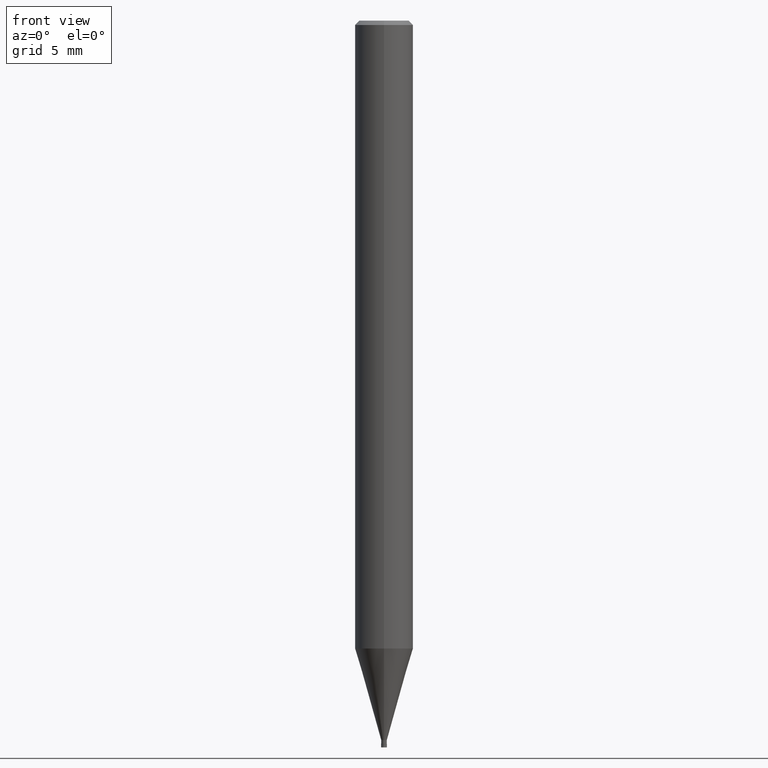
[diagram: clean part render]
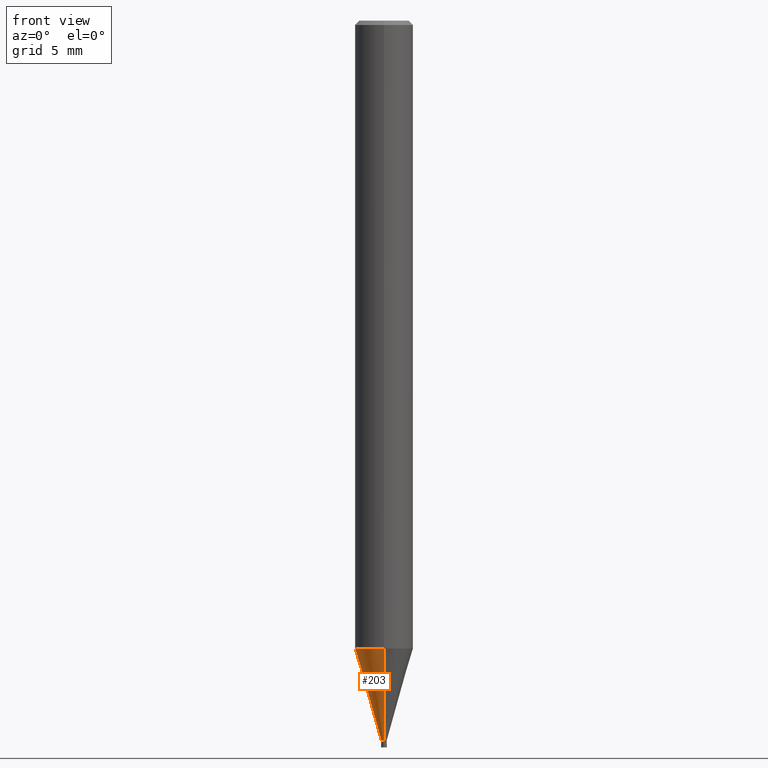
[diagram: same view with one face highlighted and labeled with its STEP entity id]
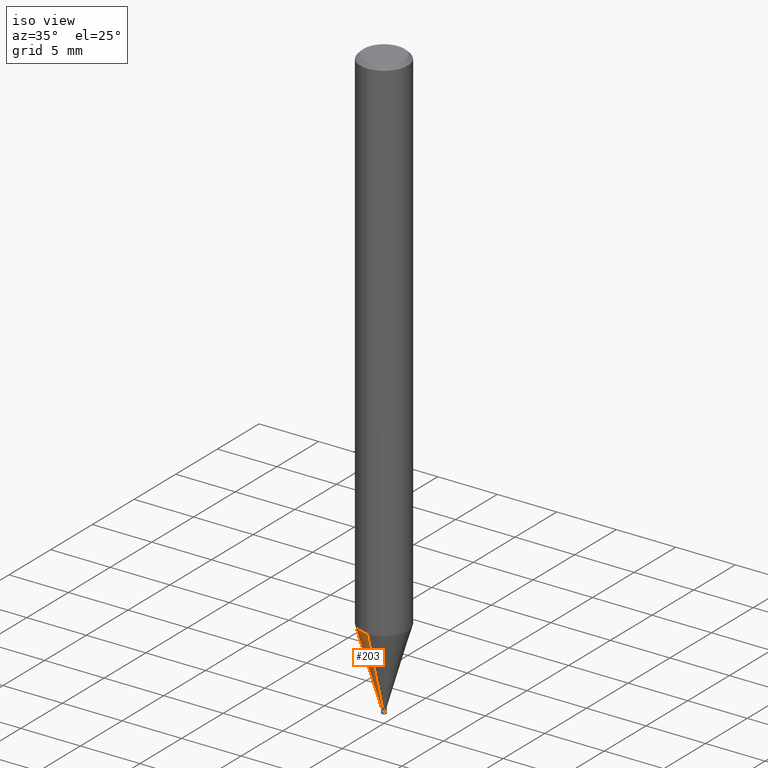
[diagram: same view with one face highlighted and labeled with its STEP entity id]
A machine part, front view. The second image highlights one B-rep face of the part: STEP entity #203.
A second angle (iso view) of the same face is appended — the face is thin or edge-on in the first view.
In plain terms, the highlighted conical surface has half-angle 15.999 deg.
Its self-contained STEP definition (entity closure, byte-faithful):
#193=VERTEX_POINT('',#435);
#203=ADVANCED_FACE('',(#446),#447,.T.);
#221=EDGE_CURVE('',#337,#193,#466,.T.);
#271=VERTEX_POINT('',#522);
#303=VERTEX_POINT('',#559);
#321=EDGE_CURVE('',#337,#303,#578,.T.);
#337=VERTEX_POINT('',#596);
#345=EDGE_CURVE('',#193,#271,#605,.T.);
#349=EDGE_CURVE('',#271,#303,#609,.T.);
#435=CARTESIAN_POINT('',(2.44915147732706E-016,-1.99995,-43.186));
#446=FACE_OUTER_BOUND('',#720,.T.);
#447=CONICAL_SURFACE('',#721,1.0962,0.279231732547063);
#466=LINE('',#747,#748);
#522=CARTESIAN_POINT('',(0.0,1.99995,-43.186));
#559=CARTESIAN_POINT('',(0.0,0.19245,-49.49));
#578=CIRCLE('',#891,0.19245);
#596=CARTESIAN_POINT('',(2.35675492793117E-017,-0.19245,-49.49));
#605=CIRCLE('',#926,1.99995);
#609=LINE('',#931,#932);
#720=EDGE_LOOP('',(#1036,#1037,#1038,#1039));
#721=AXIS2_PLACEMENT_3D('',#1040,#1041,#1042);
#747=CARTESIAN_POINT('',(1.34241348506009E-016,-1.0962,-46.338));
#748=VECTOR('',#1064,1.0);
#891=AXIS2_PLACEMENT_3D('',#1199,#1200,#1201);
#926=AXIS2_PLACEMENT_3D('',#1237,#1238,#1239);
#931=CARTESIAN_POINT('',(-1.34241348506009E-016,1.0962,-46.338));
#932=VECTOR('',#1240,1.0);
#1036=ORIENTED_EDGE('',*,*,#349,.T.);
#1037=ORIENTED_EDGE('',*,*,#321,.F.);
#1038=ORIENTED_EDGE('',*,*,#221,.T.);
#1039=ORIENTED_EDGE('',*,*,#345,.T.);
#1040=CARTESIAN_POINT('',(0.0,0.0,-46.338));
#1041=DIRECTION('',(-0.0,-0.0,1.0));
#1042=DIRECTION('',(0.0,1.0,0.0));
#1064=DIRECTION('',(3.375225981805E-017,-0.275617219465657,0.961267469715906));
#1199=CARTESIAN_POINT('',(0.0,0.0,-49.49));
#1200=DIRECTION('',(0.0,0.0,-1.0));
#1201=DIRECTION('',(0.0,1.0,0.0));
#1237=CARTESIAN_POINT('',(0.0,0.0,-43.186));
#1238=DIRECTION('',(0.0,0.0,-1.0));
#1239=DIRECTION('',(0.0,1.0,0.0));
#1240=DIRECTION('',(3.375225981805E-017,-0.275617219465657,-0.961267469715906));